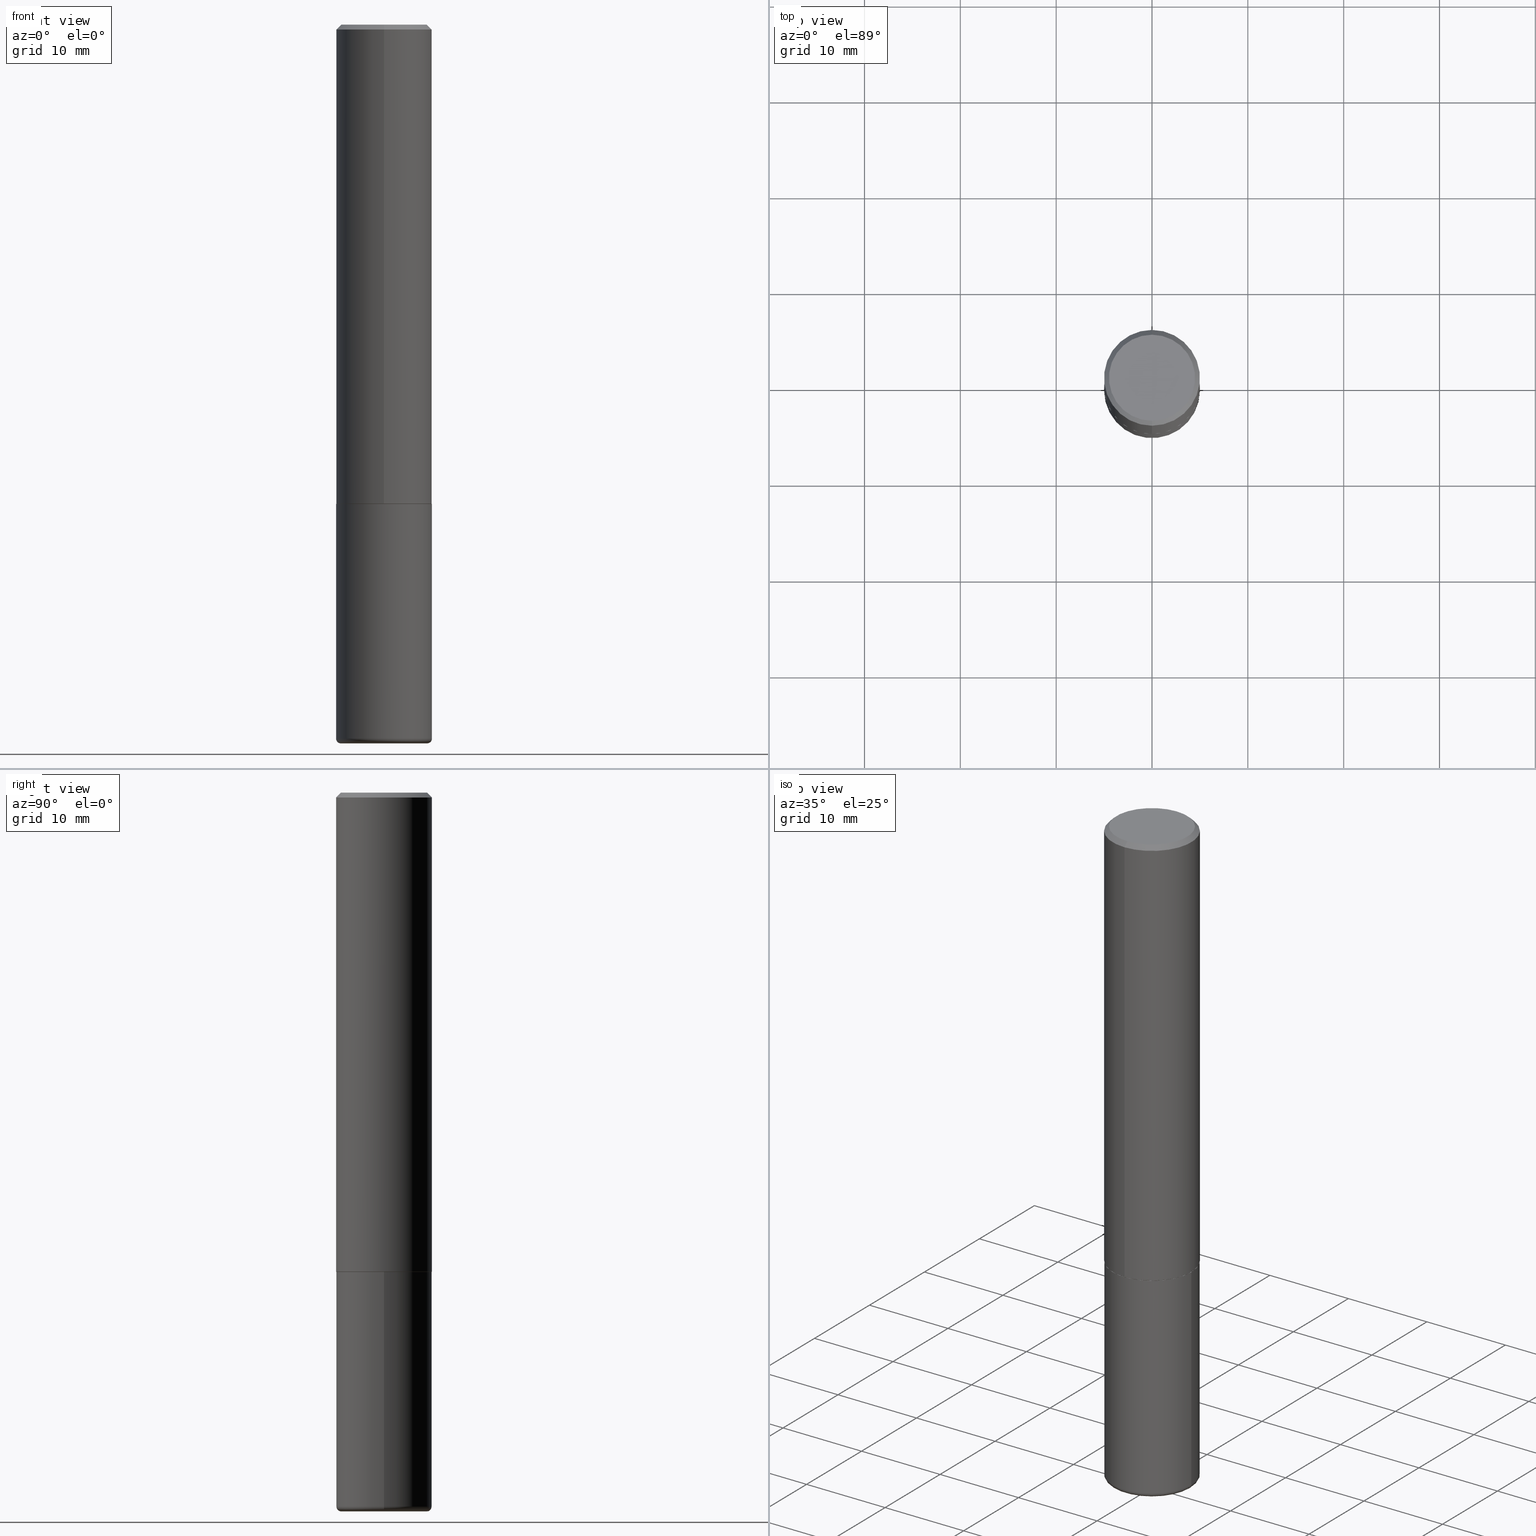
[diagram: canonical four-view strip — front | top / right | iso, engineering-drawing reading convention]
A machine part, canonical four-view strip (front | top / right | iso — engineering-drawing reading convention). The complete STEP part file that produces these views, byte-faithful:
ISO-10303-21;
HEADER;
FILE_DESCRIPTION (( 'STEP AP203' ),
    '1' );
FILE_NAME ('74400.STEP',
    '2024-03-06T15:11:16',
    ( '' ),
    ( '' ),
    'SwSTEP 2.0',
    'SolidWorks 2023',
    '' );
FILE_SCHEMA (( 'CONFIG_CONTROL_DESIGN' ));
ENDSEC;

DATA;
#1 = CARTESIAN_POINT ( 'NONE',  ( 4.811066445251554069E-29, -6.870052949640732965E-15, -1.967499999999999805 ) ) ;
#2 = EDGE_CURVE ( 'NONE', #211, #388, #187, .T. ) ;
#3 = FACE_OUTER_BOUND ( 'NONE', #261, .T. ) ;
#4 = APPROVAL_ROLE ( '' ) ;
#5 = VERTEX_POINT ( 'NONE', #256 ) ;
#6 = APPROVAL_DATE_TIME ( #322, #365 ) ;
#7 = DIRECTION ( 'NONE',  ( 1.000000000000000000, -6.982962677686267499E-15, 0.000000000000000000 ) ) ;
#8 =( CONVERSION_BASED_UNIT ( 'INCH', #288 ) LENGTH_UNIT ( ) NAMED_UNIT ( #202 ) );
#9 = DESIGN_CONTEXT ( 'detailed design', #314, 'design' ) ;
#10 = ORIENTED_EDGE ( 'NONE', *, *, #283, .F. ) ;
#11 = CARTESIAN_POINT ( 'NONE',  ( 1.391597947986204111E-15, 0.1958499999999931407, -1.968500000000000583 ) ) ;
#12 = VERTEX_POINT ( 'NONE', #89 ) ;
#13 = DIRECTION ( 'NONE',  ( 1.000000000000000000, -6.982962677686266711E-15, 4.876176775795935793E-29 ) ) ;
#14 = VECTOR ( 'NONE', #213, 39.37007874015748143 ) ;
#15 = VECTOR ( 'NONE', #271, 39.37007874015748143 ) ;
#16 = ADVANCED_FACE ( 'NONE', ( #3 ), #160, .T. ) ;
#17 = DATE_TIME_ROLE ( 'classification_date' ) ;
#18 = ORIENTED_EDGE ( 'NONE', *, *, #55, .T. ) ;
#19 = ORIENTED_EDGE ( 'NONE', *, *, #55, .F. ) ;
#20 = ORIENTED_EDGE ( 'NONE', *, *, #173, .F. ) ;
#21 = LINE ( 'NONE', #384, #383 ) ;
#22 = FACE_OUTER_BOUND ( 'NONE', #42, .T. ) ;
#23 = CARTESIAN_POINT ( 'NONE',  ( -0.1968499999999999694, 1.398703375343756999E-15, -9.682923725166782276E-30 ) ) ;
#24 = CLOSED_SHELL ( 'NONE', ( #126, #144, #250, #353, #290, #417, #141, #241 ) ) ;
#25 = EDGE_CURVE ( 'NONE', #104, #68, #387, .T. ) ;
#26 = CARTESIAN_POINT ( 'NONE',  ( 7.172804555421624566E-29, -1.024086391496083050E-14, -2.933100000000000041 ) ) ;
#27 = CC_DESIGN_APPROVAL ( #390, ( #418 ) ) ;
#28 = CARTESIAN_POINT ( 'NONE',  ( 4.813905344975440714E-29, -6.872981015512730918E-15, -1.968499999999999694 ) ) ;
#29 = MANIFOLD_SOLID_BREP ( 'Body-Move/Copy2[2]', #24 ) ;
#30 = FACE_OUTER_BOUND ( 'NONE', #193, .T. ) ;
#31 = DIRECTION ( 'NONE',  ( 1.000000000000000000, -6.982962677686266711E-15, 0.000000000000000000 ) ) ;
#32 = FACE_OUTER_BOUND ( 'NONE', #135, .T. ) ;
#33 = CARTESIAN_POINT ( 'NONE',  ( 4.890537682593712927E-31, -6.983535399888942699E-17, -0.02000000000000004205 ) ) ;
#34 = AXIS2_PLACEMENT_3D ( 'NONE', #253, #154, #122 ) ;
#35 = CC_DESIGN_APPROVAL ( #365, ( #177 ) ) ;
#36 = CARTESIAN_POINT ( 'NONE',  ( -0.1968500000000000250, -7.158219089893024104E-15, -1.968499999999999694 ) ) ;
#37 = FACE_OUTER_BOUND ( 'NONE', #368, .T. ) ;
#38 = DIRECTION ( 'NONE',  ( -2.445268841296851437E-29, 3.491767699944464545E-15, 1.000000000000000000 ) ) ;
#39 = PERSON_AND_ORGANIZATION ( #86, #41 ) ;
#40 = AXIS2_PLACEMENT_3D ( 'NONE', #367, #335, #7 ) ;
#41 = ORGANIZATION ( 'UNSPECIFIED', 'UNSPECIFIED', '' ) ;
#42 = EDGE_LOOP ( 'NONE', ( #313, #361, #129, #109 ) ) ;
#43 = DIRECTION ( 'NONE',  ( -6.982962677686265922E-15, -1.000000000000000000, 4.184602492209747448E-15 ) ) ;
#44 = SHAPE_DEFINITION_REPRESENTATION ( #242, #226 ) ;
#45 = AXIS2_PLACEMENT_3D ( 'NONE', #59, #412, #386 ) ;
#46 = AXIS2_PLACEMENT_3D ( 'NONE', #395, #389, #268 ) ;
#47 = EDGE_LOOP ( 'NONE', ( #289, #18, #228, #20 ) ) ;
#48 = LINE ( 'NONE', #11, #15 ) ;
#49 = APPROVAL_DATE_TIME ( #243, #390 ) ;
#50 = DIRECTION ( 'NONE',  ( 1.000000000000000000, -6.982962677686272233E-15, 0.000000000000000000 ) ) ;
#51 = APPROVAL_STATUS ( 'not_yet_approved' ) ;
#52 = DIRECTION ( 'NONE',  ( -2.445268841296851437E-29, 3.491767699944464545E-15, 1.000000000000000000 ) ) ;
#53 = ORIENTED_EDGE ( 'NONE', *, *, #166, .T. ) ;
#54 = VECTOR ( 'NONE', #343, 39.37007874015748143 ) ;
#55 = EDGE_CURVE ( 'NONE', #12, #97, #70, .T. ) ;
#56 = EDGE_CURVE ( 'NONE', #174, #220, #100, .T. ) ;
#57 = CARTESIAN_POINT ( 'NONE',  ( -1.281884050883609900E-15, -0.1768499999999998407, 8.395324101811677409E-16 ) ) ;
#58 = CONICAL_SURFACE ( 'NONE', #133, 0.1968500000000000527, 0.7853981633974466137 ) ;
#59 = CARTESIAN_POINT ( 'NONE',  ( -0.1771500000000000019, -8.982137458561812020E-15, -2.933100000000000041 ) ) ;
#60 = DIRECTION ( 'NONE',  ( 1.000000000000000000, -6.982962677686269866E-15, 0.000000000000000000 ) ) ;
#61 = CARTESIAN_POINT ( 'NONE',  ( 1.398703375343757985E-15, 0.1968500000000001360, -6.873544717340683232E-16 ) ) ;
#62 = DIRECTION ( 'NONE',  ( -2.445468806185136597E-29, 3.491481338843145583E-15, 1.000000000000000000 ) ) ;
#63 = PLANE ( 'NONE',  #171 ) ;
#64 = UNCERTAINTY_MEASURE_WITH_UNIT (LENGTH_MEASURE( 1.000000000000000082E-05 ), #8, 'distance_accuracy_value', 'NONE');
#65 = CONICAL_SURFACE ( 'NONE', #400, 0.1968500000000000527, 0.7853981633974466137 ) ;
#66 = CARTESIAN_POINT ( 'NONE',  ( -5.428821863719041386E-45, 7.752188435212310874E-31, 2.220132924459896583E-16 ) ) ;
#67 = EDGE_LOOP ( 'NONE', ( #392, #156 ) ) ;
#68 = VERTEX_POINT ( 'NONE', #308 ) ;
#69 = APPLICATION_PROTOCOL_DEFINITION ( 'international standard', 'config_control_design', 1994, #314 ) ;
#70 = CIRCLE ( 'NONE', #338, 0.1771500000000000019 ) ;
#71 = LOCAL_TIME ( 10, 11, 16.00000000000000000, #299 ) ;
#72 = ORIENTED_EDGE ( 'NONE', *, *, #80, .T. ) ;
#73 = DIRECTION ( 'NONE',  ( -2.445268841296851437E-29, 3.491767699944464545E-15, 1.000000000000000000 ) ) ;
#74 = EDGE_LOOP ( 'NONE', ( #10, #277, #145, #232 ) ) ;
#75 = CIRCLE ( 'NONE', #362, 0.1968500000000000527 ) ;
#76 = APPROVAL_PERSON_ORGANIZATION ( #330, #307, #373 ) ;
#77 = ORIENTED_EDGE ( 'NONE', *, *, #182, .F. ) ;
#78 = ORIENTED_EDGE ( 'NONE', *, *, #404, .T. ) ;
#79 = AXIS2_PLACEMENT_3D ( 'NONE', #309, #407, #206 ) ;
#80 = EDGE_CURVE ( 'NONE', #174, #211, #21, .T. ) ;
#81 = FACE_OUTER_BOUND ( 'NONE', #67, .T. ) ;
#82 = DIRECTION ( 'NONE',  ( -2.445468806185136597E-29, 3.491481338843145583E-15, 1.000000000000000000 ) ) ;
#83 = DIRECTION ( 'NONE',  ( -6.982962677686265133E-15, -1.000000000000000000, 3.491137977679279029E-15 ) ) ;
#84 = DIRECTION ( 'NONE',  ( 2.445268841296851437E-29, -3.491767699944464545E-15, -1.000000000000000000 ) ) ;
#85 = VERTEX_POINT ( 'NONE', #36 ) ;
#86 = PERSON ( 'UNSPECIFIED', 'UNSPECIFIED', 'UNSPECIFIED', ('UNSPECIFIED'), ('UNSPECIFIED'), ('UNSPECIFIED') ) ;
#87 = CARTESIAN_POINT ( 'NONE',  ( 7.172804555421624566E-29, -1.024086391496083050E-14, -2.933100000000000041 ) ) ;
#88 = EDGE_CURVE ( 'NONE', #235, #104, #124, .T. ) ;
#89 = CARTESIAN_POINT ( 'NONE',  ( -0.1771500000000000019, -8.946540090277048352E-15, -2.952799999999999869 ) ) ;
#90 = DIRECTION ( 'NONE',  ( 2.445268841296850876E-29, -3.491767699944464940E-15, -1.000000000000000000 ) ) ;
#91 = DIRECTION ( 'NONE',  ( -6.982962677686265922E-15, -1.000000000000000000, 4.163344669033670112E-15 ) ) ;
#92 = COORDINATED_UNIVERSAL_TIME_OFFSET ( 5, 0, .BEHIND. ) ;
#93 = VECTOR ( 'NONE', #331, 39.37007874015748854 ) ;
#94 = APPROVAL_PERSON_ORGANIZATION ( #196, #390, #4 ) ;
#95 = EDGE_CURVE ( 'NONE', #5, #244, #304, .T. ) ;
#96 = ORIENTED_EDGE ( 'NONE', *, *, #131, .T. ) ;
#97 = VERTEX_POINT ( 'NONE', #118 ) ;
#98 = COORDINATED_UNIVERSAL_TIME_OFFSET ( 5, 0, .BEHIND. ) ;
#99 = PERSON_AND_ORGANIZATION ( #86, #41 ) ;
#100 = CIRCLE ( 'NONE', #416, 0.1958499999999999963 ) ;
#101 = SECURITY_CLASSIFICATION ( '', '', #272 ) ;
#102 = ORIENTED_EDGE ( 'NONE', *, *, #320, .T. ) ;
#103 = EDGE_CURVE ( 'NONE', #388, #68, #165, .T. ) ;
#104 = VERTEX_POINT ( 'NONE', #185 ) ;
#105 = TOROIDAL_SURFACE ( 'NONE', #273, 0.1771500000000000019, 0.01969999999999987733 ) ;
#106 = CARTESIAN_POINT ( 'NONE',  ( 1.374596203102542200E-15, 0.1968499999999999694, -0.02000000000000072900 ) ) ;
#107 = DIRECTION ( 'NONE',  ( -6.982962677686265922E-15, -1.000000000000000000, 4.184602492209747448E-15 ) ) ;
#108 = CC_DESIGN_PERSON_AND_ORGANIZATION_ASSIGNMENT ( #99, #164, ( #379 ) ) ;
#109 = ORIENTED_EDGE ( 'NONE', *, *, #2, .F. ) ;
#110 = DIRECTION ( 'NONE',  ( -6.982962677686265922E-15, -1.000000000000000000, 4.163344669033670112E-15 ) ) ;
#111 = PERSON_AND_ORGANIZATION ( #86, #41 ) ;
#112 = CYLINDRICAL_SURFACE ( 'NONE', #355, 0.1968500000000001360 ) ;
#113 = VECTOR ( 'NONE', #409, 39.37007874015748143 ) ;
#114 = CARTESIAN_POINT ( 'NONE',  ( -1.350489030861325626E-15, -0.1968500000000001082, -0.01999999999999935510 ) ) ;
#115 = AXIS2_PLACEMENT_3D ( 'NONE', #352, #393, #134 ) ;
#116 = CC_DESIGN_DATE_AND_TIME_ASSIGNMENT ( #295, #267, ( #177 ) ) ;
#117 = CARTESIAN_POINT ( 'NONE',  ( 7.220980290903470182E-29, -1.030964609733603853E-14, -2.952799999999999869 ) ) ;
#118 = CARTESIAN_POINT ( 'NONE',  ( 0.1771500000000000019, -1.154667793568816250E-14, -2.952799999999999869 ) ) ;
#119 = DIRECTION ( 'NONE',  ( -2.445468806185136597E-29, 3.491481338843145583E-15, 1.000000000000000000 ) ) ;
#120 = ORIENTED_EDGE ( 'NONE', *, *, #348, .F. ) ;
#121 = FACE_OUTER_BOUND ( 'NONE', #74, .T. ) ;
#122 = DIRECTION ( 'NONE',  ( 1.000000000000000000, -6.982962677686269866E-15, 0.000000000000000000 ) ) ;
#123 = DIRECTION ( 'NONE',  ( -2.445268841296851437E-29, 3.491767699944464940E-15, 1.000000000000000000 ) ) ;
#124 = CIRCLE ( 'NONE', #333, 0.1768499999999998407 ) ;
#125 = FACE_OUTER_BOUND ( 'NONE', #47, .T. ) ;
#126 = ADVANCED_FACE ( 'NONE', ( #30 ), #398, .T. ) ;
#127 = DIRECTION ( 'NONE',  ( -2.445268841296851437E-29, 3.491767699944464545E-15, 1.000000000000000000 ) ) ;
#128 = DIRECTION ( 'NONE',  ( -1.000000000000000000, 6.982962677686265922E-15, -4.876176775795935793E-29 ) ) ;
#129 = ORIENTED_EDGE ( 'NONE', *, *, #103, .F. ) ;
#130 =( LENGTH_UNIT ( ) NAMED_UNIT ( * ) SI_UNIT ( $, .METRE. ) );
#131 = EDGE_CURVE ( 'NONE', #239, #211, #157, .T. ) ;
#132 = APPLICATION_PROTOCOL_DEFINITION ( 'international standard', 'config_control_design', 1994, #396 ) ;
#133 = AXIS2_PLACEMENT_3D ( 'NONE', #341, #84, #221 ) ;
#134 = DIRECTION ( 'NONE',  ( 1.000000000000000000, 0.000000000000000000, 0.000000000000000000 ) ) ;
#135 = EDGE_LOOP ( 'NONE', ( #238, #363, #382, #151 ) ) ;
#136 = APPROVAL_STATUS ( 'not_yet_approved' ) ;
#137 =( NAMED_UNIT ( * ) SI_UNIT ( $, .STERADIAN. ) SOLID_ANGLE_UNIT ( ) );
#138 = CIRCLE ( 'NONE', #40, 0.1968500000000000250 ) ;
#139 = AXIS2_PLACEMENT_3D ( 'NONE', #66, #233, #195 ) ;
#140 = APPROVAL_DATE_TIME ( #199, #307 ) ;
#141 = ADVANCED_FACE ( 'NONE', ( #81 ), #183, .F. ) ;
#142 = CALENDAR_DATE ( 2024, 6, 3 ) ;
#143 = AXIS2_PLACEMENT_3D ( 'NONE', #251, #380, #83 ) ;
#144 = ADVANCED_FACE ( 'NONE', ( #22 ), #112, .T. ) ;
#145 = ORIENTED_EDGE ( 'NONE', *, *, #169, .T. ) ;
#146 = CARTESIAN_POINT ( 'NONE',  ( 0.000000000000000000, 0.000000000000000000, 0.000000000000000000 ) ) ;
#147 = CC_DESIGN_DATE_AND_TIME_ASSIGNMENT ( #176, #17, ( #101 ) ) ;
#148 = DIRECTION ( 'NONE',  ( -2.445268841296851437E-29, 3.491767699944464545E-15, 1.000000000000000000 ) ) ;
#149 = AXIS2_PLACEMENT_3D ( 'NONE', #350, #73, #43 ) ;
#150 = CARTESIAN_POINT ( 'NONE',  ( 7.172804555421624566E-29, -1.024086391496083050E-14, -2.933100000000000041 ) ) ;
#151 = ORIENTED_EDGE ( 'NONE', *, *, #25, .F. ) ;
#152 = CARTESIAN_POINT ( 'NONE',  ( 4.813511714092851266E-29, -6.873544717340677315E-15, -1.968499999999999694 ) ) ;
#153 = DIRECTION ( 'NONE',  ( 1.000000000000000000, -6.982962677686271444E-15, 4.883557194083114022E-29 ) ) ;
#154 = DIRECTION ( 'NONE',  ( -2.445468806185136597E-29, 3.491481338843145583E-15, 1.000000000000000000 ) ) ;
#155 = DIRECTION ( 'NONE',  ( 1.000000000000000000, -6.982962677686271444E-15, 4.883557194083114022E-29 ) ) ;
#156 = ORIENTED_EDGE ( 'NONE', *, *, #404, .F. ) ;
#157 = CIRCLE ( 'NONE', #263, 0.1968500000000002470 ) ;
#158 = AXIS2_PLACEMENT_3D ( 'NONE', #1, #415, #91 ) ;
#159 = DIRECTION ( 'NONE',  ( -6.982962677686265922E-15, -1.000000000000000000, 3.491767699944464545E-15 ) ) ;
#160 = PLANE ( 'NONE',  #347 ) ;
#161 = CYLINDRICAL_SURFACE ( 'NONE', #46, 0.1968499999999999694 ) ;
#162 = ORIENTED_EDGE ( 'NONE', *, *, #372, .F. ) ;
#163 = ORIENTED_EDGE ( 'NONE', *, *, #175, .T. ) ;
#164 = PERSON_AND_ORGANIZATION_ROLE ( 'design_owner' ) ;
#165 = CIRCLE ( 'NONE', #143, 0.1968500000000000527 ) ;
#166 = EDGE_CURVE ( 'NONE', #85, #354, #208, .T. ) ;
#167 = ORIENTED_EDGE ( 'NONE', *, *, #88, .T. ) ;
#168 = CALENDAR_DATE ( 2024, 6, 3 ) ;
#169 = EDGE_CURVE ( 'NONE', #5, #354, #276, .T. ) ;
#170 = EDGE_LOOP ( 'NONE', ( #102, #280, #254, #351 ) ) ;
#171 = AXIS2_PLACEMENT_3D ( 'NONE', #189, #90, #378 ) ;
#172 = CIRCLE ( 'NONE', #158, 0.1968500000000002470 ) ;
#173 = EDGE_CURVE ( 'NONE', #244, #5, #298, .T. ) ;
#174 = VERTEX_POINT ( 'NONE', #237 ) ;
#175 = EDGE_CURVE ( 'NONE', #220, #239, #48, .T. ) ;
#176 = DATE_AND_TIME ( #204, #305 ) ;
#177 = PRODUCT_DEFINITION ( 'UNKNOWN', '', #418, #9 ) ;
#178 = PRODUCT_RELATED_PRODUCT_CATEGORY ( 'detail', '', ( #379 ) ) ;
#179 = AXIS2_PLACEMENT_3D ( 'NONE', #377, #180, #210 ) ;
#180 = DIRECTION ( 'NONE',  ( -2.445468806185136597E-29, 3.491481338843145583E-15, 1.000000000000000000 ) ) ;
#181 = DIRECTION ( 'NONE',  ( -2.445268841296851437E-29, 3.491767699944464545E-15, 1.000000000000000000 ) ) ;
#182 = EDGE_CURVE ( 'NONE', #235, #388, #282, .T. ) ;
#183 = PLANE ( 'NONE',  #79 ) ;
#184 = PLANE ( 'NONE',  #349 ) ;
#185 = CARTESIAN_POINT ( 'NONE',  ( 1.304766576325678705E-15, 0.1768499999999998407, -3.955058252891884244E-16 ) ) ;
#186 = FACE_OUTER_BOUND ( 'NONE', #264, .T. ) ;
#187 = LINE ( 'NONE', #414, #200 ) ;
#188 = DIRECTION ( 'NONE',  ( -6.982962677686266711E-15, -1.000000000000000000, 3.491481338843145583E-15 ) ) ;
#189 = CARTESIAN_POINT ( 'NONE',  ( 1.234936949548815012E-15, 0.1768499999999998407, -5.065124715121833152E-16 ) ) ;
#190 = AXIS2_PLACEMENT_3D ( 'NONE', #87, #119, #155 ) ;
#191 = CARTESIAN_POINT ( 'NONE',  ( 1.398703375343782440E-15, 0.1968499999999933914, -1.967500000000000471 ) ) ;
#192 = DIRECTION ( 'NONE',  ( -2.445268841296851437E-29, 3.491767699944464545E-15, 1.000000000000000000 ) ) ;
#193 = EDGE_LOOP ( 'NONE', ( #399, #163, #120, #356 ) ) ;
#194 = DIRECTION ( 'NONE',  ( -6.982962677686265922E-15, -1.000000000000000000, 4.184602492209747448E-15 ) ) ;
#195 = DIRECTION ( 'NONE',  ( -6.982962677686265922E-15, -1.000000000000000000, 3.491767699944464940E-15 ) ) ;
#196 = PERSON_AND_ORGANIZATION ( #86, #41 ) ;
#197 = EDGE_CURVE ( 'NONE', #354, #85, #138, .T. ) ;
#198 = ORIENTED_EDGE ( 'NONE', *, *, #2, .T. ) ;
#199 = DATE_AND_TIME ( #397, #71 ) ;
#200 = VECTOR ( 'NONE', #123, 39.37007874015748143 ) ;
#201 = AXIS2_PLACEMENT_3D ( 'NONE', #324, #192, #194 ) ;
#202 = DIMENSIONAL_EXPONENTS ( 1.000000000000000000, 0.000000000000000000, 0.000000000000000000, 0.000000000000000000, 0.000000000000000000, 0.000000000000000000, 0.000000000000000000 ) ;
#203 = EDGE_CURVE ( 'NONE', #239, #68, #381, .T. ) ;
#204 = CALENDAR_DATE ( 2024, 6, 3 ) ;
#205 = ADVANCED_FACE ( 'NONE', ( #125 ), #374, .T. ) ;
#206 = DIRECTION ( 'NONE',  ( -6.982962677686265922E-15, -1.000000000000000000, 3.491767699944464940E-15 ) ) ;
#207 = ORIENTED_EDGE ( 'NONE', *, *, #131, .F. ) ;
#208 = CIRCLE ( 'NONE', #179, 0.1968500000000000250 ) ;
#209 = LOCAL_TIME ( 10, 11, 16.00000000000000000, #230 ) ;
#210 = DIRECTION ( 'NONE',  ( 1.000000000000000000, -6.982962677686267499E-15, 0.000000000000000000 ) ) ;
#211 = VERTEX_POINT ( 'NONE', #217 ) ;
#212 = CARTESIAN_POINT ( 'NONE',  ( 4.890537682593712927E-31, -6.983535399888942699E-17, -0.02000000000000004205 ) ) ;
#213 = DIRECTION ( 'NONE',  ( -2.445268841296851437E-29, 3.491767699944464940E-15, 1.000000000000000000 ) ) ;
#214 = CIRCLE ( 'NONE', #291, 0.01969999999999989468 ) ;
#215 = DIRECTION ( 'NONE',  ( -2.445268841296851437E-29, 3.491767699944464545E-15, 1.000000000000000000 ) ) ;
#216 = CC_DESIGN_PERSON_AND_ORGANIZATION_ASSIGNMENT ( #370, #328, ( #101 ) ) ;
#217 = CARTESIAN_POINT ( 'NONE',  ( -1.374596203102495065E-15, -0.1968500000000071026, -1.967499999999998916 ) ) ;
#218 = EDGE_CURVE ( 'NONE', #12, #244, #245, .T. ) ;
#219 = FACE_OUTER_BOUND ( 'NONE', #321, .T. ) ;
#220 = VERTEX_POINT ( 'NONE', #337 ) ;
#221 = DIRECTION ( 'NONE',  ( 6.982962677686265133E-15, 1.000000000000000000, -3.491137977679279029E-15 ) ) ;
#222 = CIRCLE ( 'NONE', #326, 0.1771500000000000019 ) ;
#223 = CC_DESIGN_SECURITY_CLASSIFICATION ( #101, ( #418 ) ) ;
#224 = CARTESIAN_POINT ( 'NONE',  ( -5.428821863719041386E-45, 7.752188435212310874E-31, 2.220132924459896583E-16 ) ) ;
#225 = CARTESIAN_POINT ( 'NONE',  ( -1.350489030861325626E-15, -0.1968500000000001082, -0.01999999999999935510 ) ) ;
#226 = ADVANCED_BREP_SHAPE_REPRESENTATION ( '74400', ( #303, #29, #115 ), #391 ) ;
#227 = ORIENTED_EDGE ( 'NONE', *, *, #320, .F. ) ;
#228 = ORIENTED_EDGE ( 'NONE', *, *, #297, .T. ) ;
#229 = CALENDAR_DATE ( 2024, 6, 3 ) ;
#230 = COORDINATED_UNIVERSAL_TIME_OFFSET ( 5, 0, .BEHIND. ) ;
#231 = CLOSED_SHELL ( 'NONE', ( #410, #345, #360, #364, #205, #16 ) ) ;
#232 = ORIENTED_EDGE ( 'NONE', *, *, #166, .F. ) ;
#233 = DIRECTION ( 'NONE',  ( -2.445268841296851437E-29, 3.491767699944464545E-15, 1.000000000000000000 ) ) ;
#234 = DIRECTION ( 'NONE',  ( -2.445468806185136597E-29, 3.491481338843145583E-15, 1.000000000000000000 ) ) ;
#235 = VERTEX_POINT ( 'NONE', #57 ) ;
#236 = AXIS2_PLACEMENT_3D ( 'NONE', #26, #411, #60 ) ;
#237 = CARTESIAN_POINT ( 'NONE',  ( -1.367613240424807079E-15, -0.1958500000000068797, -1.968499999999999028 ) ) ;
#238 = ORIENTED_EDGE ( 'NONE', *, *, #88, .F. ) ;
#239 = VERTEX_POINT ( 'NONE', #191 ) ;
#240 = COORDINATED_UNIVERSAL_TIME_OFFSET ( 5, 0, .BEHIND. ) ;
#241 = ADVANCED_FACE ( 'NONE', ( #186 ), #63, .F. ) ;
#242 = PRODUCT_DEFINITION_SHAPE ( 'NONE', 'NONE',  #177 ) ;
#243 = DATE_AND_TIME ( #142, #329 ) ;
#244 = VERTEX_POINT ( 'NONE', #281 ) ;
#245 = CIRCLE ( 'NONE', #45, 0.01969999999999989468 ) ;
#246 = DIRECTION ( 'NONE',  ( -6.982962677686265922E-15, -1.000000000000000000, 3.491767699944464545E-15 ) ) ;
#247 = DIRECTION ( 'NONE',  ( -4.851104656540954809E-15, -0.7071067811865486830, -0.7071067811865462405 ) ) ;
#248 = CYLINDRICAL_SURFACE ( 'NONE', #408, 0.1968500000000001360 ) ;
#249 = ORIENTED_EDGE ( 'NONE', *, *, #203, .F. ) ;
#250 = ADVANCED_FACE ( 'NONE', ( #32 ), #58, .T. ) ;
#251 = CARTESIAN_POINT ( 'NONE',  ( 4.890537682593712927E-31, -6.983535399888942699E-17, -0.02000000000000004205 ) ) ;
#252 = DIRECTION ( 'NONE',  ( -1.000000000000000000, 6.982962677686265922E-15, -4.876176775795935793E-29 ) ) ;
#253 = CARTESIAN_POINT ( 'NONE',  ( 7.172804555421624566E-29, -1.024086391496083050E-14, -2.933100000000000041 ) ) ;
#254 = ORIENTED_EDGE ( 'NONE', *, *, #95, .F. ) ;
#255 = CYLINDRICAL_SURFACE ( 'NONE', #339, 0.1968499999999999694 ) ;
#256 = CARTESIAN_POINT ( 'NONE',  ( 0.1968499999999999417, -1.161546011806337053E-14, -2.933100000000000041 ) ) ;
#257 = LOCAL_TIME ( 10, 11, 16.00000000000000000, #98 ) ;
#258 = CARTESIAN_POINT ( 'NONE',  ( 0.1968500000000000250, -8.247577218615273316E-15, -1.968499999999999694 ) ) ;
#259 = DIRECTION ( 'NONE',  ( -6.982962677686265133E-15, -1.000000000000000000, 3.491137977679279029E-15 ) ) ;
#260 = CARTESIAN_POINT ( 'NONE',  ( 7.220980290903470182E-29, -1.030964609733603853E-14, -2.952799999999999869 ) ) ;
#261 = EDGE_LOOP ( 'NONE', ( #227, #19 ) ) ;
#262 = APPROVAL_ROLE ( '' ) ;
#263 = AXIS2_PLACEMENT_3D ( 'NONE', #315, #334, #110 ) ;
#264 = EDGE_LOOP ( 'NONE', ( #403, #167 ) ) ;
#265 = PERSON_AND_ORGANIZATION ( #86, #41 ) ;
#266 = ORIENTED_EDGE ( 'NONE', *, *, #325, .T. ) ;
#267 = DATE_TIME_ROLE ( 'creation_date' ) ;
#268 = DIRECTION ( 'NONE',  ( 1.000000000000000000, -6.982962677686266711E-15, 4.876176775795935793E-29 ) ) ;
#269 = AXIS2_PLACEMENT_3D ( 'NONE', #152, #215, #340 ) ;
#270 = CC_DESIGN_APPROVAL ( #307, ( #101 ) ) ;
#271 = DIRECTION ( 'NONE',  ( 5.024295867788490741E-15, 0.7071067811866103003, 0.7071067811864847341 ) ) ;
#272 = SECURITY_CLASSIFICATION_LEVEL ( 'unclassified' ) ;
#273 = AXIS2_PLACEMENT_3D ( 'NONE', #150, #385, #153 ) ;
#274 = CIRCLE ( 'NONE', #139, 0.1768499999999998407 ) ;
#275 = CC_DESIGN_PERSON_AND_ORGANIZATION_ASSIGNMENT ( #405, #302, ( #418 ) ) ;
#276 = LINE ( 'NONE', #371, #54 ) ;
#277 = ORIENTED_EDGE ( 'NONE', *, *, #173, .T. ) ;
#278 = CARTESIAN_POINT ( 'NONE',  ( 0.000000000000000000, 0.000000000000000000, 0.000000000000000000 ) ) ;
#279 = DIRECTION ( 'NONE',  ( 2.438088387897960049E-29, -3.491481338843145188E-15, -1.000000000000000000 ) ) ;
#280 = ORIENTED_EDGE ( 'NONE', *, *, #218, .T. ) ;
#281 = CARTESIAN_POINT ( 'NONE',  ( -0.1968499999999999417, -8.842160539617071922E-15, -2.933100000000000041 ) ) ;
#282 = LINE ( 'NONE', #114, #285 ) ;
#283 = EDGE_CURVE ( 'NONE', #244, #85, #284, .T. ) ;
#284 = LINE ( 'NONE', #23, #113 ) ;
#285 = VECTOR ( 'NONE', #247, 39.37007874015748854 ) ;
#286 = FACE_OUTER_BOUND ( 'NONE', #170, .T. ) ;
#287 = DIRECTION ( 'NONE',  ( 2.438088387897960049E-29, -3.491481338843145188E-15, -1.000000000000000000 ) ) ;
#288 = LENGTH_MEASURE_WITH_UNIT ( LENGTH_MEASURE( 0.02539999999999999897 ), #130 );
#289 = ORIENTED_EDGE ( 'NONE', *, *, #218, .F. ) ;
#290 = ADVANCED_FACE ( 'NONE', ( #316 ), #248, .T. ) ;
#291 = AXIS2_PLACEMENT_3D ( 'NONE', #312, #188, #31 ) ;
#292 = CIRCLE ( 'NONE', #201, 0.1958499999999999963 ) ;
#293 = FACE_OUTER_BOUND ( 'NONE', #406, .T. ) ;
#294 = ORIENTED_EDGE ( 'NONE', *, *, #175, .F. ) ;
#295 = DATE_AND_TIME ( #229, #257 ) ;
#296 = ORIENTED_EDGE ( 'NONE', *, *, #197, .T. ) ;
#297 = EDGE_CURVE ( 'NONE', #97, #5, #214, .T. ) ;
#298 = CIRCLE ( 'NONE', #34, 0.1968499999999999694 ) ;
#299 = COORDINATED_UNIVERSAL_TIME_OFFSET ( 5, 0, .BEHIND. ) ;
#300 = APPROVAL_PERSON_ORGANIZATION ( #265, #365, #262 ) ;
#301 = ORIENTED_EDGE ( 'NONE', *, *, #25, .T. ) ;
#302 = PERSON_AND_ORGANIZATION_ROLE ( 'creator' ) ;
#303 = MANIFOLD_SOLID_BREP ( 'Body-Move/Copy2[1]', #231 ) ;
#304 = CIRCLE ( 'NONE', #236, 0.1968499999999999694 ) ;
#305 = LOCAL_TIME ( 10, 11, 16.00000000000000000, #240 ) ;
#306 = CC_DESIGN_PERSON_AND_ORGANIZATION_ASSIGNMENT ( #39, #357, ( #177 ) ) ;
#307 = APPROVAL ( #51, 'UNSPECIFIED' ) ;
#308 = CARTESIAN_POINT ( 'NONE',  ( 1.374596203102542200E-15, 0.1968499999999999694, -0.02000000000000072900 ) ) ;
#309 = CARTESIAN_POINT ( 'NONE',  ( 4.813511714092851266E-29, -6.873544717340677315E-15, -1.968499999999999694 ) ) ;
#310 = DIRECTION ( 'NONE',  ( -6.982962677686265922E-15, -1.000000000000000000, 3.491767699944464940E-15 ) ) ;
#311 = ORIENTED_EDGE ( 'NONE', *, *, #95, .T. ) ;
#312 = CARTESIAN_POINT ( 'NONE',  ( 0.1771500000000000019, -1.147789575331295131E-14, -2.933100000000000041 ) ) ;
#313 = ORIENTED_EDGE ( 'NONE', *, *, #348, .T. ) ;
#314 = APPLICATION_CONTEXT ( 'configuration controlled 3d designs of mechanical parts and assemblies' ) ;
#315 = CARTESIAN_POINT ( 'NONE',  ( 4.811066445251554069E-29, -6.870052949640732965E-15, -1.967499999999999805 ) ) ;
#316 = FACE_OUTER_BOUND ( 'NONE', #358, .T. ) ;
#317 = DIRECTION ( 'NONE',  ( 1.000000000000000000, -6.982962677686272233E-15, 0.000000000000000000 ) ) ;
#318 = DIRECTION ( 'NONE',  ( -4.937700262164969294E-15, -0.7071067811866054154, 0.7071067811864896191 ) ) ;
#319 = APPROVAL_STATUS ( 'not_yet_approved' ) ;
#320 = EDGE_CURVE ( 'NONE', #97, #12, #222, .T. ) ;
#321 = EDGE_LOOP ( 'NONE', ( #296, #53 ) ) ;
#322 = DATE_AND_TIME ( #168, #209 ) ;
#323 =( NAMED_UNIT ( * ) PLANE_ANGLE_UNIT ( ) SI_UNIT ( $, .RADIAN. ) );
#324 = CARTESIAN_POINT ( 'NONE',  ( 4.813511714092851266E-29, -6.873544717340677315E-15, -1.968499999999999694 ) ) ;
#325 = EDGE_CURVE ( 'NONE', #68, #388, #75, .T. ) ;
#326 = AXIS2_PLACEMENT_3D ( 'NONE', #117, #82, #317 ) ;
#327 = CARTESIAN_POINT ( 'NONE',  ( 7.220980290903470182E-29, -1.030964609733603853E-14, -2.952799999999999869 ) ) ;
#328 = PERSON_AND_ORGANIZATION_ROLE ( 'classification_officer' ) ;
#329 = LOCAL_TIME ( 10, 11, 16.00000000000000000, #92 ) ;
#330 = PERSON_AND_ORGANIZATION ( #86, #41 ) ;
#331 = DIRECTION ( 'NONE',  ( 4.937700262164538576E-15, 0.7071067811865437980, -0.7071067811865511255 ) ) ;
#332 = PERSON_AND_ORGANIZATION_ROLE ( 'design_supplier' ) ;
#333 = AXIS2_PLACEMENT_3D ( 'NONE', #224, #38, #310 ) ;
#334 = DIRECTION ( 'NONE',  ( -2.445268841296851437E-29, 3.491767699944464545E-15, 1.000000000000000000 ) ) ;
#335 = DIRECTION ( 'NONE',  ( -2.445468806185136597E-29, 3.491481338843145583E-15, 1.000000000000000000 ) ) ;
#336 = DIRECTION ( 'NONE',  ( 2.445268841296851437E-29, -3.491767699944464545E-15, -1.000000000000000000 ) ) ;
#337 = CARTESIAN_POINT ( 'NONE',  ( 1.395150661665005404E-15, 0.1958499999999931407, -1.968500000000000583 ) ) ;
#338 = AXIS2_PLACEMENT_3D ( 'NONE', #327, #234, #50 ) ;
#339 = AXIS2_PLACEMENT_3D ( 'NONE', #342, #62, #13 ) ;
#340 = DIRECTION ( 'NONE',  ( -6.982962677686265922E-15, -1.000000000000000000, 4.184602492209747448E-15 ) ) ;
#341 = CARTESIAN_POINT ( 'NONE',  ( 4.890537682593712927E-31, -6.983535399888942699E-17, -0.02000000000000004205 ) ) ;
#342 = CARTESIAN_POINT ( 'NONE',  ( 0.000000000000000000, 0.000000000000000000, 0.000000000000000000 ) ) ;
#343 = DIRECTION ( 'NONE',  ( -2.445468806185136877E-29, 3.491481338843145188E-15, 1.000000000000000000 ) ) ;
#344 = CC_DESIGN_PERSON_AND_ORGANIZATION_ASSIGNMENT ( #111, #332, ( #418 ) ) ;
#345 = ADVANCED_FACE ( 'NONE', ( #286 ), #105, .T. ) ;
#346 = DIRECTION ( 'NONE',  ( 6.982962677686265133E-15, 1.000000000000000000, -3.491137977679279029E-15 ) ) ;
#347 = AXIS2_PLACEMENT_3D ( 'NONE', #260, #287, #128 ) ;
#348 = EDGE_CURVE ( 'NONE', #211, #239, #172, .T. ) ;
#349 = AXIS2_PLACEMENT_3D ( 'NONE', #28, #279, #252 ) ;
#350 = CARTESIAN_POINT ( 'NONE',  ( 4.813511714092851266E-29, -6.873544717340677315E-15, -1.968499999999999694 ) ) ;
#351 = ORIENTED_EDGE ( 'NONE', *, *, #297, .F. ) ;
#352 = CARTESIAN_POINT ( 'NONE',  ( 0.000000000000000000, 0.000000000000000000, 0.000000000000000000 ) ) ;
#353 = ADVANCED_FACE ( 'NONE', ( #413 ), #65, .T. ) ;
#354 = VERTEX_POINT ( 'NONE', #258 ) ;
#355 = AXIS2_PLACEMENT_3D ( 'NONE', #146, #52, #246 ) ;
#356 = ORIENTED_EDGE ( 'NONE', *, *, #80, .F. ) ;
#357 = PERSON_AND_ORGANIZATION_ROLE ( 'creator' ) ;
#358 = EDGE_LOOP ( 'NONE', ( #249, #96, #198, #401 ) ) ;
#359 = MECHANICAL_CONTEXT ( 'NONE', #396, 'mechanical' ) ;
#360 = ADVANCED_FACE ( 'NONE', ( #219 ), #184, .F. ) ;
#361 = ORIENTED_EDGE ( 'NONE', *, *, #203, .T. ) ;
#362 = AXIS2_PLACEMENT_3D ( 'NONE', #33, #148, #259 ) ;
#363 = ORIENTED_EDGE ( 'NONE', *, *, #182, .T. ) ;
#364 = ADVANCED_FACE ( 'NONE', ( #121 ), #255, .T. ) ;
#365 = APPROVAL ( #136, 'UNSPECIFIED' ) ;
#366 = ORIENTED_EDGE ( 'NONE', *, *, #169, .F. ) ;
#367 = CARTESIAN_POINT ( 'NONE',  ( 4.813905344975440714E-29, -6.872981015512730918E-15, -1.968499999999999694 ) ) ;
#368 = EDGE_LOOP ( 'NONE', ( #311, #369, #394, #366 ) ) ;
#369 = ORIENTED_EDGE ( 'NONE', *, *, #283, .T. ) ;
#370 = PERSON_AND_ORGANIZATION ( #86, #41 ) ;
#371 = CARTESIAN_POINT ( 'NONE',  ( 0.1968499999999999694, -1.374596203102541411E-15, 9.598753983154298056E-30 ) ) ;
#372 = EDGE_CURVE ( 'NONE', #104, #235, #274, .T. ) ;
#373 = APPROVAL_ROLE ( '' ) ;
#374 = TOROIDAL_SURFACE ( 'NONE', #190, 0.1771500000000000019, 0.01969999999999987733 ) ;
#375 = CONICAL_SURFACE ( 'NONE', #149, 0.1958499999999999963, 0.7853981633975336552 ) ;
#376 = EDGE_LOOP ( 'NONE', ( #77, #162, #301, #266 ) ) ;
#377 = CARTESIAN_POINT ( 'NONE',  ( 4.813905344975440714E-29, -6.872981015512730918E-15, -1.968499999999999694 ) ) ;
#378 = DIRECTION ( 'NONE',  ( 6.982962677686265922E-15, 1.000000000000000000, -3.491767699944464940E-15 ) ) ;
#379 = PRODUCT ( '74400', '74400', '', ( #359 ) ) ;
#380 = DIRECTION ( 'NONE',  ( -2.445268841296851437E-29, 3.491767699944464545E-15, 1.000000000000000000 ) ) ;
#381 = LINE ( 'NONE', #61, #14 ) ;
#382 = ORIENTED_EDGE ( 'NONE', *, *, #103, .T. ) ;
#383 = VECTOR ( 'NONE', #318, 39.37007874015748143 ) ;
#384 = CARTESIAN_POINT ( 'NONE',  ( -1.367613240424807079E-15, -0.1958500000000068797, -1.968499999999999028 ) ) ;
#385 = DIRECTION ( 'NONE',  ( -2.445468806185136597E-29, 3.491481338843145583E-15, 1.000000000000000000 ) ) ;
#386 = DIRECTION ( 'NONE',  ( -1.000000000000000000, 7.105427357600965571E-15, 0.000000000000000000 ) ) ;
#387 = LINE ( 'NONE', #106, #93 ) ;
#388 = VERTEX_POINT ( 'NONE', #225 ) ;
#389 = DIRECTION ( 'NONE',  ( -2.445468806185136597E-29, 3.491481338843145583E-15, 1.000000000000000000 ) ) ;
#390 = APPROVAL ( #319, 'UNSPECIFIED' ) ;
#391 =( GEOMETRIC_REPRESENTATION_CONTEXT ( 3 ) GLOBAL_UNCERTAINTY_ASSIGNED_CONTEXT ( ( #64 ) ) GLOBAL_UNIT_ASSIGNED_CONTEXT ( ( #8, #323, #137 ) ) REPRESENTATION_CONTEXT ( 'NONE', 'WORKASPACE' ) );
#392 = ORIENTED_EDGE ( 'NONE', *, *, #56, .F. ) ;
#393 = DIRECTION ( 'NONE',  ( 0.000000000000000000, 0.000000000000000000, 1.000000000000000000 ) ) ;
#394 = ORIENTED_EDGE ( 'NONE', *, *, #197, .F. ) ;
#395 = CARTESIAN_POINT ( 'NONE',  ( 0.000000000000000000, 0.000000000000000000, 0.000000000000000000 ) ) ;
#396 = APPLICATION_CONTEXT ( 'configuration controlled 3d designs of mechanical parts and assemblies' ) ;
#397 = CALENDAR_DATE ( 2024, 6, 3 ) ;
#398 = CONICAL_SURFACE ( 'NONE', #269, 0.1958499999999999963, 0.7853981633975336552 ) ;
#399 = ORIENTED_EDGE ( 'NONE', *, *, #56, .T. ) ;
#400 = AXIS2_PLACEMENT_3D ( 'NONE', #212, #336, #346 ) ;
#401 = ORIENTED_EDGE ( 'NONE', *, *, #325, .F. ) ;
#402 = CARTESIAN_POINT ( 'NONE',  ( 4.813511714092851266E-29, -6.873544717340677315E-15, -1.968499999999999694 ) ) ;
#403 = ORIENTED_EDGE ( 'NONE', *, *, #372, .T. ) ;
#404 = EDGE_CURVE ( 'NONE', #220, #174, #292, .T. ) ;
#405 = PERSON_AND_ORGANIZATION ( #86, #41 ) ;
#406 = EDGE_LOOP ( 'NONE', ( #294, #78, #72, #207 ) ) ;
#407 = DIRECTION ( 'NONE',  ( -2.445268841296850876E-29, 3.491767699944464940E-15, 1.000000000000000000 ) ) ;
#408 = AXIS2_PLACEMENT_3D ( 'NONE', #278, #127, #159 ) ;
#409 = DIRECTION ( 'NONE',  ( -2.445468806185136877E-29, 3.491481338843145188E-15, 1.000000000000000000 ) ) ;
#410 = ADVANCED_FACE ( 'NONE', ( #37 ), #161, .T. ) ;
#411 = DIRECTION ( 'NONE',  ( -2.445468806185136597E-29, 3.491481338843145583E-15, 1.000000000000000000 ) ) ;
#412 = DIRECTION ( 'NONE',  ( 7.105427357601001859E-15, 1.000000000000000000, -3.491481338843145583E-15 ) ) ;
#413 = FACE_OUTER_BOUND ( 'NONE', #376, .T. ) ;
#414 = CARTESIAN_POINT ( 'NONE',  ( -1.374596203102542397E-15, -0.1968500000000001360, 6.873544717340683232E-16 ) ) ;
#415 = DIRECTION ( 'NONE',  ( -2.445268841296851437E-29, 3.491767699944464545E-15, 1.000000000000000000 ) ) ;
#416 = AXIS2_PLACEMENT_3D ( 'NONE', #402, #181, #107 ) ;
#417 = ADVANCED_FACE ( 'NONE', ( #293 ), #375, .T. ) ;
#418 = PRODUCT_DEFINITION_FORMATION_WITH_SPECIFIED_SOURCE ( 'ANY', '', #379, .NOT_KNOWN. ) ;
ENDSEC;
END-ISO-10303-21;
